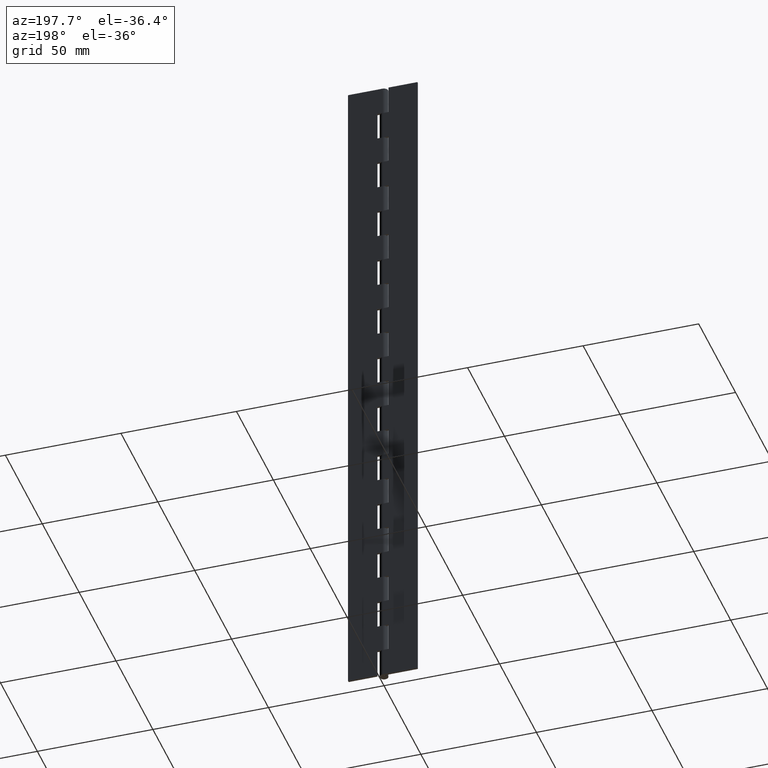
[diagram: clean part render]
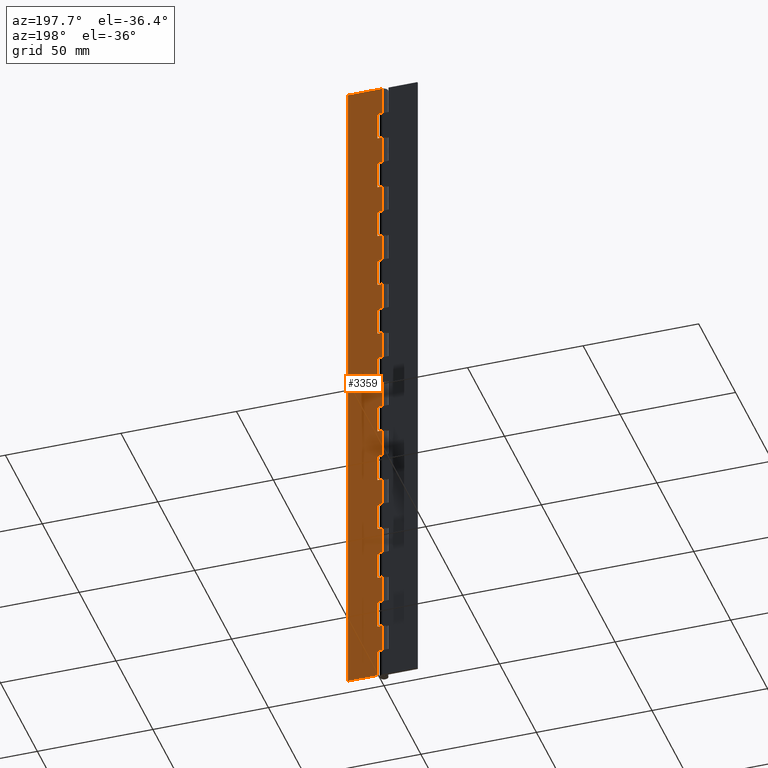
[diagram: same view with one face highlighted and labeled with its STEP entity id]
A machine part, auxiliary view. The second image highlights one B-rep face of the part: STEP entity #3359.
In plain terms, the highlighted face is a freeform B-spline surface patch.
Its self-contained STEP definition (entity closure, byte-faithful):
#79=CARTESIAN_POINT('',(0.0,1.800017999999850,287.500000000000000));
#80=VERTEX_POINT('',#79);
#100=CARTESIAN_POINT('',(2.500000000000200,1.800017999999850,287.500000000000000));
#101=VERTEX_POINT('',#100);
#102=CARTESIAN_POINT('',(2.500000000000200,1.800017999999850,287.500000000000000));
#103=CARTESIAN_POINT('',(0.0,1.800017999999850,287.500000000000000));
#104=QUASI_UNIFORM_CURVE('',1,(#102,#103),.UNSPECIFIED.,.F.,.U.);
#105=EDGE_CURVE('',#101,#80,#104,.T.);
#128=CARTESIAN_POINT('',(2.500000000000200,1.800017999999850,275.0));
#129=VERTEX_POINT('',#128);
#130=CARTESIAN_POINT('',(2.500000000000200,1.800017999999850,275.0));
#131=CARTESIAN_POINT('',(2.500000000000200,1.800017999999850,287.500000000000000));
#132=QUASI_UNIFORM_CURVE('',1,(#130,#131),.UNSPECIFIED.,.F.,.U.);
#133=EDGE_CURVE('',#129,#101,#132,.T.);
#156=CARTESIAN_POINT('',(0.0,1.800017999999850,275.0));
#157=VERTEX_POINT('',#156);
#158=CARTESIAN_POINT('',(0.0,1.800017999999850,275.0));
#159=CARTESIAN_POINT('',(2.500000000000200,1.800017999999850,275.0));
#160=QUASI_UNIFORM_CURVE('',1,(#158,#159),.UNSPECIFIED.,.F.,.U.);
#161=EDGE_CURVE('',#157,#129,#160,.T.);
#255=CARTESIAN_POINT('',(0.0,1.800017999999850,262.500000000000000));
#256=VERTEX_POINT('',#255);
#276=CARTESIAN_POINT('',(2.500000000000200,1.800017999999850,262.500000000000000));
#277=VERTEX_POINT('',#276);
#278=CARTESIAN_POINT('',(2.500000000000200,1.800017999999850,262.500000000000000));
#279=CARTESIAN_POINT('',(0.0,1.800017999999850,262.500000000000000));
#280=QUASI_UNIFORM_CURVE('',1,(#278,#279),.UNSPECIFIED.,.F.,.U.);
#281=EDGE_CURVE('',#277,#256,#280,.T.);
#304=CARTESIAN_POINT('',(2.500000000000200,1.800017999999850,250.0));
#305=VERTEX_POINT('',#304);
#306=CARTESIAN_POINT('',(2.500000000000200,1.800017999999850,250.0));
#307=CARTESIAN_POINT('',(2.500000000000200,1.800017999999850,262.500000000000000));
#308=QUASI_UNIFORM_CURVE('',1,(#306,#307),.UNSPECIFIED.,.F.,.U.);
#309=EDGE_CURVE('',#305,#277,#308,.T.);
#332=CARTESIAN_POINT('',(0.0,1.800017999999850,250.0));
#333=VERTEX_POINT('',#332);
#334=CARTESIAN_POINT('',(0.0,1.800017999999850,250.0));
#335=CARTESIAN_POINT('',(2.500000000000200,1.800017999999850,250.0));
#336=QUASI_UNIFORM_CURVE('',1,(#334,#335),.UNSPECIFIED.,.F.,.U.);
#337=EDGE_CURVE('',#333,#305,#336,.T.);
#431=CARTESIAN_POINT('',(0.0,1.800017999999850,237.500000000000000));
#432=VERTEX_POINT('',#431);
#452=CARTESIAN_POINT('',(2.500000000000200,1.800017999999850,237.500000000000000));
#453=VERTEX_POINT('',#452);
#454=CARTESIAN_POINT('',(2.500000000000200,1.800017999999850,237.500000000000000));
#455=CARTESIAN_POINT('',(0.0,1.800017999999850,237.500000000000000));
#456=QUASI_UNIFORM_CURVE('',1,(#454,#455),.UNSPECIFIED.,.F.,.U.);
#457=EDGE_CURVE('',#453,#432,#456,.T.);
#480=CARTESIAN_POINT('',(2.500000000000200,1.800017999999850,225.0));
#481=VERTEX_POINT('',#480);
#482=CARTESIAN_POINT('',(2.500000000000200,1.800017999999850,225.0));
#483=CARTESIAN_POINT('',(2.500000000000200,1.800017999999850,237.500000000000000));
#484=QUASI_UNIFORM_CURVE('',1,(#482,#483),.UNSPECIFIED.,.F.,.U.);
#485=EDGE_CURVE('',#481,#453,#484,.T.);
#508=CARTESIAN_POINT('',(0.0,1.800017999999850,225.0));
#509=VERTEX_POINT('',#508);
#510=CARTESIAN_POINT('',(0.0,1.800017999999850,225.0));
#511=CARTESIAN_POINT('',(2.500000000000200,1.800017999999850,225.0));
#512=QUASI_UNIFORM_CURVE('',1,(#510,#511),.UNSPECIFIED.,.F.,.U.);
#513=EDGE_CURVE('',#509,#481,#512,.T.);
#607=CARTESIAN_POINT('',(0.0,1.800017999999850,212.500000000000000));
#608=VERTEX_POINT('',#607);
#628=CARTESIAN_POINT('',(2.500000000000200,1.800017999999850,212.500000000000000));
#629=VERTEX_POINT('',#628);
#630=CARTESIAN_POINT('',(2.500000000000200,1.800017999999850,212.500000000000000));
#631=CARTESIAN_POINT('',(0.0,1.800017999999850,212.500000000000000));
#632=QUASI_UNIFORM_CURVE('',1,(#630,#631),.UNSPECIFIED.,.F.,.U.);
#633=EDGE_CURVE('',#629,#608,#632,.T.);
#656=CARTESIAN_POINT('',(2.500000000000200,1.800017999999850,200.0));
#657=VERTEX_POINT('',#656);
#658=CARTESIAN_POINT('',(2.500000000000200,1.800017999999850,200.0));
#659=CARTESIAN_POINT('',(2.500000000000200,1.800017999999850,212.500000000000000));
#660=QUASI_UNIFORM_CURVE('',1,(#658,#659),.UNSPECIFIED.,.F.,.U.);
#661=EDGE_CURVE('',#657,#629,#660,.T.);
#684=CARTESIAN_POINT('',(0.0,1.800017999999850,200.0));
#685=VERTEX_POINT('',#684);
#686=CARTESIAN_POINT('',(0.0,1.800017999999850,200.0));
#687=CARTESIAN_POINT('',(2.500000000000200,1.800017999999850,200.0));
#688=QUASI_UNIFORM_CURVE('',1,(#686,#687),.UNSPECIFIED.,.F.,.U.);
#689=EDGE_CURVE('',#685,#657,#688,.T.);
#783=CARTESIAN_POINT('',(0.0,1.800017999999850,187.500000000000000));
#784=VERTEX_POINT('',#783);
#804=CARTESIAN_POINT('',(2.500000000000200,1.800017999999850,187.500000000000000));
#805=VERTEX_POINT('',#804);
#806=CARTESIAN_POINT('',(2.500000000000200,1.800017999999850,187.500000000000000));
#807=CARTESIAN_POINT('',(0.0,1.800017999999850,187.500000000000000));
#808=QUASI_UNIFORM_CURVE('',1,(#806,#807),.UNSPECIFIED.,.F.,.U.);
#809=EDGE_CURVE('',#805,#784,#808,.T.);
#832=CARTESIAN_POINT('',(2.500000000000200,1.800017999999850,175.0));
#833=VERTEX_POINT('',#832);
#834=CARTESIAN_POINT('',(2.500000000000200,1.800017999999850,175.0));
#835=CARTESIAN_POINT('',(2.500000000000200,1.800017999999850,187.500000000000000));
#836=QUASI_UNIFORM_CURVE('',1,(#834,#835),.UNSPECIFIED.,.F.,.U.);
#837=EDGE_CURVE('',#833,#805,#836,.T.);
#860=CARTESIAN_POINT('',(0.0,1.800017999999850,175.0));
#861=VERTEX_POINT('',#860);
#862=CARTESIAN_POINT('',(0.0,1.800017999999850,175.0));
#863=CARTESIAN_POINT('',(2.500000000000200,1.800017999999850,175.0));
#864=QUASI_UNIFORM_CURVE('',1,(#862,#863),.UNSPECIFIED.,.F.,.U.);
#865=EDGE_CURVE('',#861,#833,#864,.T.);
#959=CARTESIAN_POINT('',(0.0,1.800017999999850,162.500000000000000));
#960=VERTEX_POINT('',#959);
#980=CARTESIAN_POINT('',(2.500000000000200,1.800017999999850,162.500000000000000));
#981=VERTEX_POINT('',#980);
#982=CARTESIAN_POINT('',(2.500000000000200,1.800017999999850,162.500000000000000));
#983=CARTESIAN_POINT('',(0.0,1.800017999999850,162.500000000000000));
#984=QUASI_UNIFORM_CURVE('',1,(#982,#983),.UNSPECIFIED.,.F.,.U.);
#985=EDGE_CURVE('',#981,#960,#984,.T.);
#1008=CARTESIAN_POINT('',(2.500000000000200,1.800017999999850,150.0));
#1009=VERTEX_POINT('',#1008);
#1010=CARTESIAN_POINT('',(2.500000000000200,1.800017999999850,150.0));
#1011=CARTESIAN_POINT('',(2.500000000000200,1.800017999999850,162.500000000000000));
#1012=QUASI_UNIFORM_CURVE('',1,(#1010,#1011),.UNSPECIFIED.,.F.,.U.);
#1013=EDGE_CURVE('',#1009,#981,#1012,.T.);
#1036=CARTESIAN_POINT('',(0.0,1.800017999999850,150.0));
#1037=VERTEX_POINT('',#1036);
#1038=CARTESIAN_POINT('',(0.0,1.800017999999850,150.0));
#1039=CARTESIAN_POINT('',(2.500000000000200,1.800017999999850,150.0));
#1040=QUASI_UNIFORM_CURVE('',1,(#1038,#1039),.UNSPECIFIED.,.F.,.U.);
#1041=EDGE_CURVE('',#1037,#1009,#1040,.T.);
#1135=CARTESIAN_POINT('',(0.0,1.800017999999850,137.500000000000000));
#1136=VERTEX_POINT('',#1135);
#1156=CARTESIAN_POINT('',(2.500000000000200,1.800017999999850,137.500000000000000));
#1157=VERTEX_POINT('',#1156);
#1158=CARTESIAN_POINT('',(2.500000000000200,1.800017999999850,137.500000000000000));
#1159=CARTESIAN_POINT('',(0.0,1.800017999999850,137.500000000000000));
#1160=QUASI_UNIFORM_CURVE('',1,(#1158,#1159),.UNSPECIFIED.,.F.,.U.);
#1161=EDGE_CURVE('',#1157,#1136,#1160,.T.);
#1184=CARTESIAN_POINT('',(2.500000000000200,1.800017999999850,125.0));
#1185=VERTEX_POINT('',#1184);
#1186=CARTESIAN_POINT('',(2.500000000000200,1.800017999999850,125.0));
#1187=CARTESIAN_POINT('',(2.500000000000200,1.800017999999850,137.500000000000000));
#1188=QUASI_UNIFORM_CURVE('',1,(#1186,#1187),.UNSPECIFIED.,.F.,.U.);
#1189=EDGE_CURVE('',#1185,#1157,#1188,.T.);
#1212=CARTESIAN_POINT('',(0.0,1.800017999999850,125.0));
#1213=VERTEX_POINT('',#1212);
#1214=CARTESIAN_POINT('',(0.0,1.800017999999850,125.0));
#1215=CARTESIAN_POINT('',(2.500000000000200,1.800017999999850,125.0));
#1216=QUASI_UNIFORM_CURVE('',1,(#1214,#1215),.UNSPECIFIED.,.F.,.U.);
#1217=EDGE_CURVE('',#1213,#1185,#1216,.T.);
#1311=CARTESIAN_POINT('',(0.0,1.800017999999850,112.500000000000000));
#1312=VERTEX_POINT('',#1311);
#1332=CARTESIAN_POINT('',(2.500000000000200,1.800017999999850,112.500000000000000));
#1333=VERTEX_POINT('',#1332);
#1334=CARTESIAN_POINT('',(2.500000000000200,1.800017999999850,112.500000000000000));
#1335=CARTESIAN_POINT('',(0.0,1.800017999999850,112.500000000000000));
#1336=QUASI_UNIFORM_CURVE('',1,(#1334,#1335),.UNSPECIFIED.,.F.,.U.);
#1337=EDGE_CURVE('',#1333,#1312,#1336,.T.);
#1360=CARTESIAN_POINT('',(2.500000000000200,1.800017999999850,100.0));
#1361=VERTEX_POINT('',#1360);
#1362=CARTESIAN_POINT('',(2.500000000000200,1.800017999999850,100.0));
#1363=CARTESIAN_POINT('',(2.500000000000200,1.800017999999850,112.500000000000000));
#1364=QUASI_UNIFORM_CURVE('',1,(#1362,#1363),.UNSPECIFIED.,.F.,.U.);
#1365=EDGE_CURVE('',#1361,#1333,#1364,.T.);
#1388=CARTESIAN_POINT('',(0.0,1.800017999999850,100.0));
#1389=VERTEX_POINT('',#1388);
#1390=CARTESIAN_POINT('',(0.0,1.800017999999850,100.0));
#1391=CARTESIAN_POINT('',(2.500000000000200,1.800017999999850,100.0));
#1392=QUASI_UNIFORM_CURVE('',1,(#1390,#1391),.UNSPECIFIED.,.F.,.U.);
#1393=EDGE_CURVE('',#1389,#1361,#1392,.T.);
#1487=CARTESIAN_POINT('',(0.0,1.800017999999850,87.500000000000000));
#1488=VERTEX_POINT('',#1487);
#1508=CARTESIAN_POINT('',(2.500000000000200,1.800017999999850,87.500000000000000));
#1509=VERTEX_POINT('',#1508);
#1510=CARTESIAN_POINT('',(2.500000000000200,1.800017999999850,87.500000000000000));
#1511=CARTESIAN_POINT('',(0.0,1.800017999999850,87.500000000000000));
#1512=QUASI_UNIFORM_CURVE('',1,(#1510,#1511),.UNSPECIFIED.,.F.,.U.);
#1513=EDGE_CURVE('',#1509,#1488,#1512,.T.);
#1536=CARTESIAN_POINT('',(2.500000000000200,1.800017999999850,75.0));
#1537=VERTEX_POINT('',#1536);
#1538=CARTESIAN_POINT('',(2.500000000000200,1.800017999999850,75.0));
#1539=CARTESIAN_POINT('',(2.500000000000200,1.800017999999850,87.500000000000000));
#1540=QUASI_UNIFORM_CURVE('',1,(#1538,#1539),.UNSPECIFIED.,.F.,.U.);
#1541=EDGE_CURVE('',#1537,#1509,#1540,.T.);
#1564=CARTESIAN_POINT('',(0.0,1.800017999999850,75.0));
#1565=VERTEX_POINT('',#1564);
#1566=CARTESIAN_POINT('',(0.0,1.800017999999850,75.0));
#1567=CARTESIAN_POINT('',(2.500000000000200,1.800017999999850,75.0));
#1568=QUASI_UNIFORM_CURVE('',1,(#1566,#1567),.UNSPECIFIED.,.F.,.U.);
#1569=EDGE_CURVE('',#1565,#1537,#1568,.T.);
#1663=CARTESIAN_POINT('',(0.0,1.800017999999850,62.500000000000000));
#1664=VERTEX_POINT('',#1663);
#1684=CARTESIAN_POINT('',(2.500000000000200,1.800017999999850,62.500000000000000));
#1685=VERTEX_POINT('',#1684);
#1686=CARTESIAN_POINT('',(2.500000000000200,1.800017999999850,62.500000000000000));
#1687=CARTESIAN_POINT('',(0.0,1.800017999999850,62.500000000000000));
#1688=QUASI_UNIFORM_CURVE('',1,(#1686,#1687),.UNSPECIFIED.,.F.,.U.);
#1689=EDGE_CURVE('',#1685,#1664,#1688,.T.);
#1712=CARTESIAN_POINT('',(2.500000000000200,1.800017999999850,50.0));
#1713=VERTEX_POINT('',#1712);
#1714=CARTESIAN_POINT('',(2.500000000000200,1.800017999999850,50.0));
#1715=CARTESIAN_POINT('',(2.500000000000200,1.800017999999850,62.500000000000000));
#1716=QUASI_UNIFORM_CURVE('',1,(#1714,#1715),.UNSPECIFIED.,.F.,.U.);
#1717=EDGE_CURVE('',#1713,#1685,#1716,.T.);
#1740=CARTESIAN_POINT('',(0.0,1.800017999999850,50.0));
#1741=VERTEX_POINT('',#1740);
#1742=CARTESIAN_POINT('',(0.0,1.800017999999850,50.0));
#1743=CARTESIAN_POINT('',(2.500000000000200,1.800017999999850,50.0));
#1744=QUASI_UNIFORM_CURVE('',1,(#1742,#1743),.UNSPECIFIED.,.F.,.U.);
#1745=EDGE_CURVE('',#1741,#1713,#1744,.T.);
#1839=CARTESIAN_POINT('',(0.0,1.800017999999850,37.500000000000000));
#1840=VERTEX_POINT('',#1839);
#1860=CARTESIAN_POINT('',(2.500000000000200,1.800017999999850,37.500000000000000));
#1861=VERTEX_POINT('',#1860);
#1862=CARTESIAN_POINT('',(2.500000000000200,1.800017999999850,37.500000000000000));
#1863=CARTESIAN_POINT('',(0.0,1.800017999999850,37.500000000000000));
#1864=QUASI_UNIFORM_CURVE('',1,(#1862,#1863),.UNSPECIFIED.,.F.,.U.);
#1865=EDGE_CURVE('',#1861,#1840,#1864,.T.);
#1888=CARTESIAN_POINT('',(2.500000000000200,1.800017999999850,25.0));
#1889=VERTEX_POINT('',#1888);
#1890=CARTESIAN_POINT('',(2.500000000000200,1.800017999999850,25.0));
#1891=CARTESIAN_POINT('',(2.500000000000200,1.800017999999850,37.500000000000000));
#1892=QUASI_UNIFORM_CURVE('',1,(#1890,#1891),.UNSPECIFIED.,.F.,.U.);
#1893=EDGE_CURVE('',#1889,#1861,#1892,.T.);
#1916=CARTESIAN_POINT('',(0.0,1.800017999999850,25.0));
#1917=VERTEX_POINT('',#1916);
#1918=CARTESIAN_POINT('',(0.0,1.800017999999850,25.0));
#1919=CARTESIAN_POINT('',(2.500000000000200,1.800017999999850,25.0));
#1920=QUASI_UNIFORM_CURVE('',1,(#1918,#1919),.UNSPECIFIED.,.F.,.U.);
#1921=EDGE_CURVE('',#1917,#1889,#1920,.T.);
#2015=CARTESIAN_POINT('',(0.0,1.800017999999850,12.500000000000000));
#2016=VERTEX_POINT('',#2015);
#2036=CARTESIAN_POINT('',(2.500000000000200,1.800017999999850,12.500000000000000));
#2037=VERTEX_POINT('',#2036);
#2038=CARTESIAN_POINT('',(2.500000000000200,1.800017999999850,12.500000000000000));
#2039=CARTESIAN_POINT('',(0.0,1.800017999999850,12.500000000000000));
#2040=QUASI_UNIFORM_CURVE('',1,(#2038,#2039),.UNSPECIFIED.,.F.,.U.);
#2041=EDGE_CURVE('',#2037,#2016,#2040,.T.);
#2064=CARTESIAN_POINT('',(2.500000000000200,1.800017999999795,0.0));
#2065=VERTEX_POINT('',#2064);
#2066=CARTESIAN_POINT('',(2.500000000000200,1.800017999999795,0.0));
#2067=CARTESIAN_POINT('',(2.500000000000200,1.800017999999850,12.500000000000000));
#2068=QUASI_UNIFORM_CURVE('',1,(#2066,#2067),.UNSPECIFIED.,.F.,.U.);
#2069=EDGE_CURVE('',#2065,#2037,#2068,.T.);
#2091=CARTESIAN_POINT('',(-3.306470E-016,1.800017999999795,300.0));
#2092=VERTEX_POINT('',#2091);
#2093=CARTESIAN_POINT('',(15.0,1.800017999999795,300.0));
#2094=VERTEX_POINT('',#2093);
#2095=CARTESIAN_POINT('',(-3.306470E-016,1.800017999999795,300.0));
#2096=CARTESIAN_POINT('',(15.0,1.800017999999795,300.0));
#2097=QUASI_UNIFORM_CURVE('',1,(#2095,#2096),.UNSPECIFIED.,.F.,.U.);
#2098=EDGE_CURVE('',#2092,#2094,#2097,.T.);
#2169=CARTESIAN_POINT('',(15.0,1.800017999999795,0.0));
#2170=VERTEX_POINT('',#2169);
#2178=CARTESIAN_POINT('',(15.0,1.800017999999795,300.0));
#2179=CARTESIAN_POINT('',(15.0,1.800017999999795,0.0));
#2180=QUASI_UNIFORM_CURVE('',1,(#2178,#2179),.UNSPECIFIED.,.F.,.U.);
#2181=EDGE_CURVE('',#2094,#2170,#2180,.T.);
#2198=CARTESIAN_POINT('',(2.500000000000200,1.800017999999795,0.0));
#2199=CARTESIAN_POINT('',(15.0,1.800017999999795,0.0));
#2200=QUASI_UNIFORM_CURVE('',1,(#2198,#2199),.UNSPECIFIED.,.F.,.U.);
#2201=EDGE_CURVE('',#2065,#2170,#2200,.T.);
#2235=CARTESIAN_POINT('',(0.0,1.800017999999850,25.0));
#2236=CARTESIAN_POINT('',(0.0,1.800017999999850,12.500000000000000));
#2237=QUASI_UNIFORM_CURVE('',1,(#2235,#2236),.UNSPECIFIED.,.F.,.U.);
#2238=EDGE_CURVE('',#1917,#2016,#2237,.T.);
#2321=CARTESIAN_POINT('',(0.0,1.800017999999850,50.0));
#2322=CARTESIAN_POINT('',(0.0,1.800017999999850,37.500000000000000));
#2323=QUASI_UNIFORM_CURVE('',1,(#2321,#2322),.UNSPECIFIED.,.F.,.U.);
#2324=EDGE_CURVE('',#1741,#1840,#2323,.T.);
#2407=CARTESIAN_POINT('',(0.0,1.800017999999850,75.0));
#2408=CARTESIAN_POINT('',(0.0,1.800017999999850,62.500000000000000));
#2409=QUASI_UNIFORM_CURVE('',1,(#2407,#2408),.UNSPECIFIED.,.F.,.U.);
#2410=EDGE_CURVE('',#1565,#1664,#2409,.T.);
#2493=CARTESIAN_POINT('',(0.0,1.800017999999850,100.0));
#2494=CARTESIAN_POINT('',(0.0,1.800017999999850,87.500000000000000));
#2495=QUASI_UNIFORM_CURVE('',1,(#2493,#2494),.UNSPECIFIED.,.F.,.U.);
#2496=EDGE_CURVE('',#1389,#1488,#2495,.T.);
#2579=CARTESIAN_POINT('',(0.0,1.800017999999850,125.0));
#2580=CARTESIAN_POINT('',(0.0,1.800017999999850,112.500000000000000));
#2581=QUASI_UNIFORM_CURVE('',1,(#2579,#2580),.UNSPECIFIED.,.F.,.U.);
#2582=EDGE_CURVE('',#1213,#1312,#2581,.T.);
#2665=CARTESIAN_POINT('',(0.0,1.800017999999850,150.0));
#2666=CARTESIAN_POINT('',(0.0,1.800017999999850,137.500000000000000));
#2667=QUASI_UNIFORM_CURVE('',1,(#2665,#2666),.UNSPECIFIED.,.F.,.U.);
#2668=EDGE_CURVE('',#1037,#1136,#2667,.T.);
#2751=CARTESIAN_POINT('',(0.0,1.800017999999850,175.0));
#2752=CARTESIAN_POINT('',(0.0,1.800017999999850,162.500000000000000));
#2753=QUASI_UNIFORM_CURVE('',1,(#2751,#2752),.UNSPECIFIED.,.F.,.U.);
#2754=EDGE_CURVE('',#861,#960,#2753,.T.);
#2837=CARTESIAN_POINT('',(0.0,1.800017999999850,200.0));
#2838=CARTESIAN_POINT('',(0.0,1.800017999999850,187.500000000000000));
#2839=QUASI_UNIFORM_CURVE('',1,(#2837,#2838),.UNSPECIFIED.,.F.,.U.);
#2840=EDGE_CURVE('',#685,#784,#2839,.T.);
#2923=CARTESIAN_POINT('',(0.0,1.800017999999850,225.0));
#2924=CARTESIAN_POINT('',(0.0,1.800017999999850,212.500000000000000));
#2925=QUASI_UNIFORM_CURVE('',1,(#2923,#2924),.UNSPECIFIED.,.F.,.U.);
#2926=EDGE_CURVE('',#509,#608,#2925,.T.);
#3009=CARTESIAN_POINT('',(0.0,1.800017999999850,250.0));
#3010=CARTESIAN_POINT('',(0.0,1.800017999999850,237.500000000000000));
#3011=QUASI_UNIFORM_CURVE('',1,(#3009,#3010),.UNSPECIFIED.,.F.,.U.);
#3012=EDGE_CURVE('',#333,#432,#3011,.T.);
#3101=CARTESIAN_POINT('',(-3.306470E-016,1.800017999999795,300.0));
#3102=CARTESIAN_POINT('',(0.0,1.800017999999850,287.500000000000000));
#3103=QUASI_UNIFORM_CURVE('',1,(#3101,#3102),.UNSPECIFIED.,.F.,.U.);
#3104=EDGE_CURVE('',#2092,#80,#3103,.T.);
#3132=CARTESIAN_POINT('',(0.0,1.800017999999850,275.0));
#3133=CARTESIAN_POINT('',(0.0,1.800017999999850,262.500000000000000));
#3134=QUASI_UNIFORM_CURVE('',1,(#3132,#3133),.UNSPECIFIED.,.F.,.U.);
#3135=EDGE_CURVE('',#157,#256,#3134,.T.);
#3302=CARTESIAN_POINT('',(-0.749249970927090,1.800017999999795,-14.984999418541790));
#3303=CARTESIAN_POINT('',(-0.749249970927090,1.800017999999795,314.985007465168910));
#3304=CARTESIAN_POINT('',(15.749250373258439,1.800017999999795,-14.984999418541790));
#3305=CARTESIAN_POINT('',(15.749250373258439,1.800017999999795,314.985007465168910));
#3306=B_SPLINE_SURFACE_WITH_KNOTS('',1,1,((#3302,#3304),(#3303,#3305)),.UNSPECIFIED.,.F.,.F.,.U.,(2,2),(2,2),(0.0,329.970006883710710),(0.0,16.498500344185530),.UNSPECIFIED.);
#3307=ORIENTED_EDGE('',*,*,#3135,.F.);
#3308=ORIENTED_EDGE('',*,*,#161,.T.);
#3309=ORIENTED_EDGE('',*,*,#133,.T.);
#3310=ORIENTED_EDGE('',*,*,#105,.T.);
#3311=ORIENTED_EDGE('',*,*,#3104,.F.);
#3312=ORIENTED_EDGE('',*,*,#2098,.T.);
#3313=ORIENTED_EDGE('',*,*,#2181,.T.);
#3314=ORIENTED_EDGE('',*,*,#2201,.F.);
#3315=ORIENTED_EDGE('',*,*,#2069,.T.);
#3316=ORIENTED_EDGE('',*,*,#2041,.T.);
#3317=ORIENTED_EDGE('',*,*,#2238,.F.);
#3318=ORIENTED_EDGE('',*,*,#1921,.T.);
#3319=ORIENTED_EDGE('',*,*,#1893,.T.);
#3320=ORIENTED_EDGE('',*,*,#1865,.T.);
#3321=ORIENTED_EDGE('',*,*,#2324,.F.);
#3322=ORIENTED_EDGE('',*,*,#1745,.T.);
#3323=ORIENTED_EDGE('',*,*,#1717,.T.);
#3324=ORIENTED_EDGE('',*,*,#1689,.T.);
#3325=ORIENTED_EDGE('',*,*,#2410,.F.);
#3326=ORIENTED_EDGE('',*,*,#1569,.T.);
#3327=ORIENTED_EDGE('',*,*,#1541,.T.);
#3328=ORIENTED_EDGE('',*,*,#1513,.T.);
#3329=ORIENTED_EDGE('',*,*,#2496,.F.);
#3330=ORIENTED_EDGE('',*,*,#1393,.T.);
#3331=ORIENTED_EDGE('',*,*,#1365,.T.);
#3332=ORIENTED_EDGE('',*,*,#1337,.T.);
#3333=ORIENTED_EDGE('',*,*,#2582,.F.);
#3334=ORIENTED_EDGE('',*,*,#1217,.T.);
#3335=ORIENTED_EDGE('',*,*,#1189,.T.);
#3336=ORIENTED_EDGE('',*,*,#1161,.T.);
#3337=ORIENTED_EDGE('',*,*,#2668,.F.);
#3338=ORIENTED_EDGE('',*,*,#1041,.T.);
#3339=ORIENTED_EDGE('',*,*,#1013,.T.);
#3340=ORIENTED_EDGE('',*,*,#985,.T.);
#3341=ORIENTED_EDGE('',*,*,#2754,.F.);
#3342=ORIENTED_EDGE('',*,*,#865,.T.);
#3343=ORIENTED_EDGE('',*,*,#837,.T.);
#3344=ORIENTED_EDGE('',*,*,#809,.T.);
#3345=ORIENTED_EDGE('',*,*,#2840,.F.);
#3346=ORIENTED_EDGE('',*,*,#689,.T.);
#3347=ORIENTED_EDGE('',*,*,#661,.T.);
#3348=ORIENTED_EDGE('',*,*,#633,.T.);
#3349=ORIENTED_EDGE('',*,*,#2926,.F.);
#3350=ORIENTED_EDGE('',*,*,#513,.T.);
#3351=ORIENTED_EDGE('',*,*,#485,.T.);
#3352=ORIENTED_EDGE('',*,*,#457,.T.);
#3353=ORIENTED_EDGE('',*,*,#3012,.F.);
#3354=ORIENTED_EDGE('',*,*,#337,.T.);
#3355=ORIENTED_EDGE('',*,*,#309,.T.);
#3356=ORIENTED_EDGE('',*,*,#281,.T.);
#3357=EDGE_LOOP('',(#3307,#3308,#3309,#3310,#3311,#3312,#3313,#3314,#3315,#3316,#3317,#3318,#3319,#3320,#3321,#3322,#3323,#3324,#3325,#3326,#3327,#3328,#3329,#3330,#3331,#3332,#3333,#3334,#3335,#3336,#3337,#3338,#3339,#3340,#3341,#3342,#3343,#3344,#3345,#3346,#3347,#3348,#3349,#3350,#3351,#3352,#3353,#3354,#3355,#3356));
#3358=FACE_OUTER_BOUND('',#3357,.T.);
#3359=ADVANCED_FACE('',(#3358),#3306,.T.);